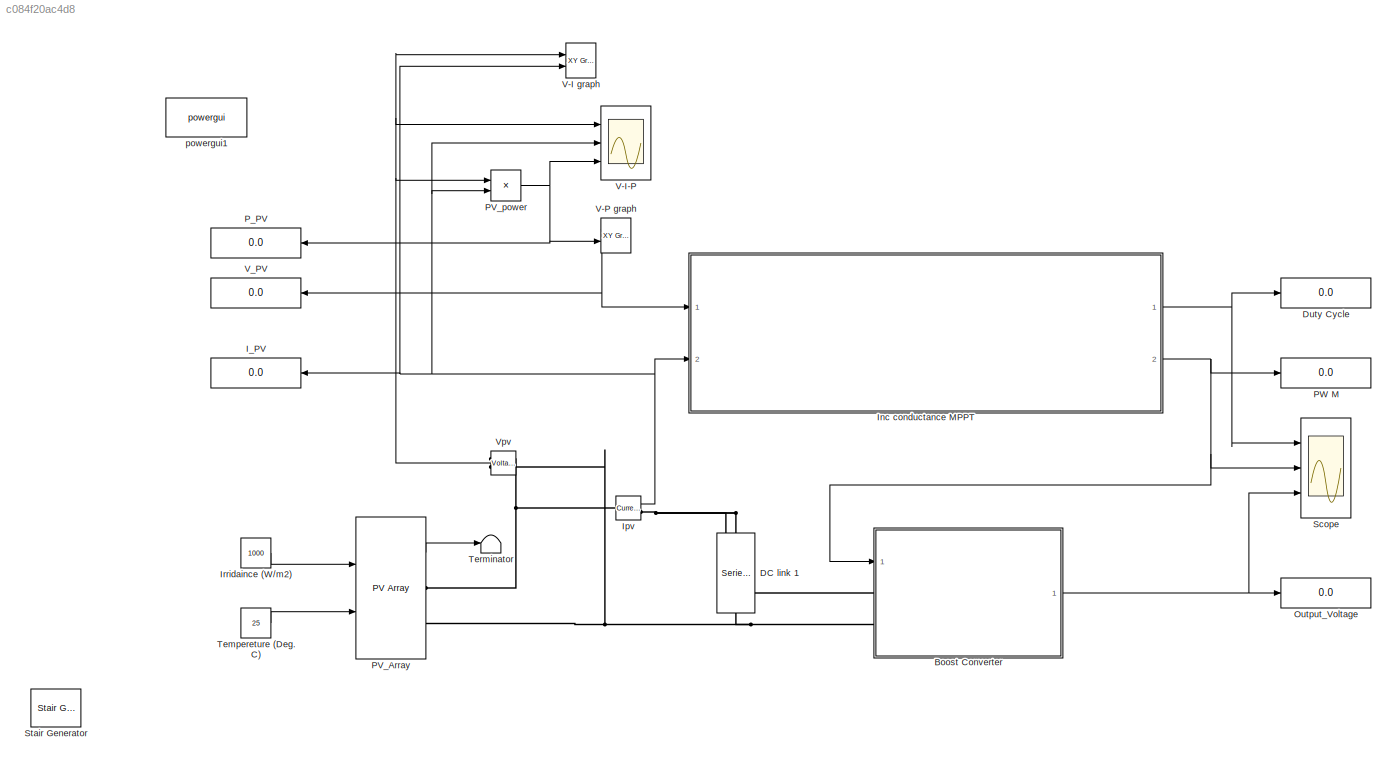
MODEL slx_c084f20ac4d8
KIND model
CONFIG AbsTol = auto
CONFIG EnableMultiTasking = off
CONFIG FixedStep = auto
CONFIG MaxStep = auto
CONFIG MinStep = auto
CONFIG RelTol = 1e-3
CONFIG SampleTimeConstraint = Unconstrained
CONFIG Solver = VariableStepDiscrete
CONFIG SolverName = VariableStepDiscrete
CONFIG StartTime = 0.0
CONFIG StopTime = 1
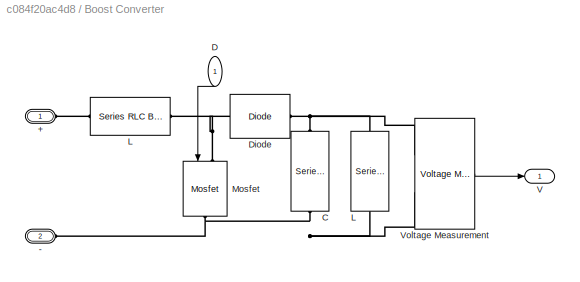
BLOCK [SubSystem] Boost Converter
  Ports = [1, 1, 0, 0, 0, 2]
  RequestExecContextInheritance = off
BLOCK [PMIOPort] Boost Converter/+
  Side = Left
BLOCK [PMIOPort] Boost Converter/-
  Port = 2
  Side = Left
BLOCK [Reference] Boost Converter/C   REF=powerlib/Elements/Series RLC Branch
  Ports = [0, 0, 0, 0, 0, 1, 1]
  SourceBlock = powerlib/Elements/Series RLC Branch
  SourceProductBaseCode = PS
  SourceProductName = Simscape Power Systems
  SourceType = Series RLC Branch
BLOCK [Inport] Boost Converter/D
  IconDisplay = Port number
BLOCK [Reference] Boost Converter/Diode  REF=powerlib/Power
Electronics/Diode
  Ports = [0, 0, 0, 0, 0, 1, 1]
  SourceBlock = powerlib/Power\nElectronics/Diode
  SourceProductBaseCode = PS
  SourceProductName = Simscape Power Systems
  SourceType = Diode
BLOCK [Reference] Boost Converter/L  REF=powerlib/Elements/Series RLC Branch
  Ports = [0, 0, 0, 0, 0, 1, 1]
  SourceBlock = powerlib/Elements/Series RLC Branch
  SourceProductBaseCode = PS
  SourceProductName = Simscape Power Systems
  SourceType = Series RLC Branch
BLOCK [Reference] Boost Converter/L    REF=powerlib/Elements/Series RLC Branch
  Ports = [0, 0, 0, 0, 0, 1, 1]
  SourceBlock = powerlib/Elements/Series RLC Branch
  SourceProductBaseCode = PS
  SourceProductName = Simscape Power Systems
  SourceType = Series RLC Branch
BLOCK [Reference] Boost Converter/Mosfet  REF=powerlib/Power
Electronics/Mosfet
  Ports = [1, 0, 0, 0, 0, 1, 1]
  SourceBlock = powerlib/Power\nElectronics/Mosfet
  SourceProductBaseCode = PS
  SourceProductName = Simscape Power Systems
  SourceType = Mosfet
BLOCK [Outport] Boost Converter/V
  IconDisplay = Port number
BLOCK [Reference] Boost Converter/Voltage Measurement  REF=powerlib/Measurements/Voltage Measurement
  Ports = [0, 1, 0, 0, 0, 2]
  SourceBlock = powerlib/Measurements/Voltage Measurement
  SourceProductBaseCode = PS
  SourceProductName = Simscape Power Systems
  SourceType = Voltage Measurement
  UserDataPersistent = on
BLOCK [Reference] DC link 1  REF=powerlib/Elements/Series RLC Branch
  Ports = [0, 0, 0, 0, 0, 1, 1]
  SourceBlock = powerlib/Elements/Series RLC Branch
  SourceProductBaseCode = PS
  SourceProductName = Simscape Power Systems
  SourceType = Series RLC Branch
BLOCK [Display] Duty Cycle
  Decimation = 1
  Ports = [1]
BLOCK [Display] I_PV
  Decimation = 1
  Ports = [1]
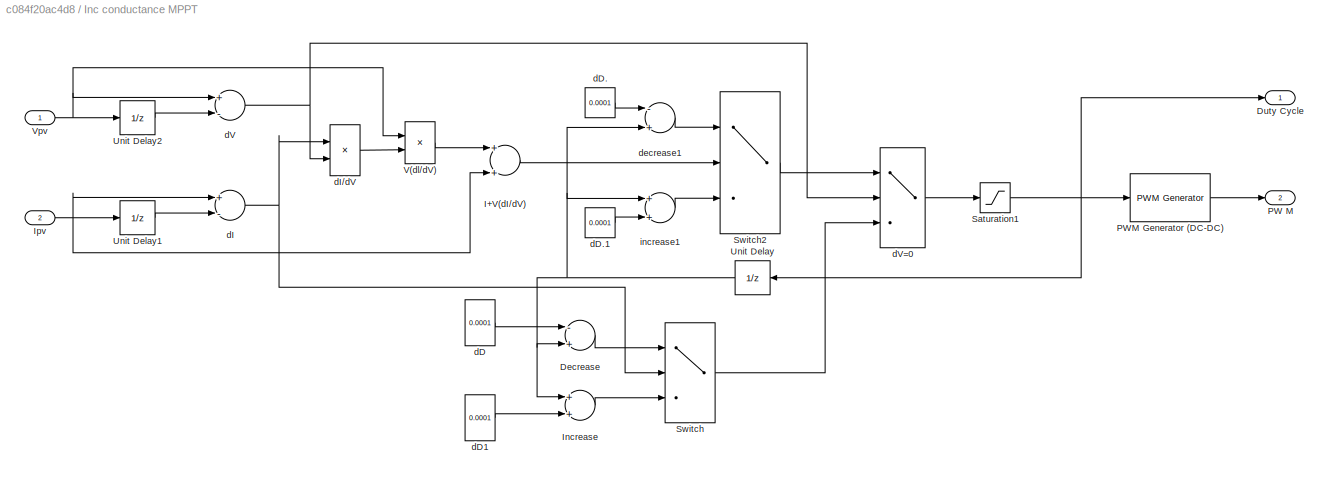
BLOCK [SubSystem] Inc conductance MPPT
  Ports = [2, 2]
  RequestExecContextInheritance = off
BLOCK [Sum] Inc conductance MPPT/Decrease
  InputSameDT = off
  Inputs = -+
  OutDataTypeStr = Inherit: Inherit via internal rule
  Ports = [2, 1]
  SaturateOnIntegerOverflow = off
BLOCK [Outport] Inc conductance MPPT/Duty Cycle
  IconDisplay = Port number
BLOCK [Sum] Inc conductance MPPT/I+V(dI//dV)
  InputSameDT = off
  OutDataTypeStr = Inherit: Inherit via internal rule
  Ports = [2, 1]
  SaturateOnIntegerOverflow = off
BLOCK [Sum] Inc conductance MPPT/Increase
  InputSameDT = off
  OutDataTypeStr = Inherit: Inherit via internal rule
  Ports = [2, 1]
  SaturateOnIntegerOverflow = off
BLOCK [Inport] Inc conductance MPPT/Ipv
  IconDisplay = Port number
  Port = 2
BLOCK [Outport] Inc conductance MPPT/PW M
  IconDisplay = Port number
  Port = 2
BLOCK [Reference] Inc conductance MPPT/PWM Generator (DC-DC)  REF=pePwmGenerator/PWM Generator
  Ports = [1, 1]
  SourceBlock = pePwmGenerator/PWM Generator
  SourceType = PWM Generator
BLOCK [Saturate] Inc conductance MPPT/Saturation1
  InputPortMap = u0
  Ports = [1, 1]
BLOCK [Switch] Inc conductance MPPT/Switch
  Criteria = u2 > Threshold
  InputSameDT = off
  SaturateOnIntegerOverflow = off
BLOCK [Switch] Inc conductance MPPT/Switch2
  Criteria = u2 > Threshold
  InputSameDT = off
  SaturateOnIntegerOverflow = off
BLOCK [UnitDelay] Inc conductance MPPT/Unit Delay
  InputProcessing = Elements as channels (sample based)
  SampleTime = 5e-6
BLOCK [UnitDelay] Inc conductance MPPT/Unit Delay1
  InputProcessing = Elements as channels (sample based)
  SampleTime = 5e-5
BLOCK [UnitDelay] Inc conductance MPPT/Unit Delay2
  InputProcessing = Elements as channels (sample based)
  SampleTime = 5e-5
BLOCK [Product] Inc conductance MPPT/V(dl//dV)
  InputSameDT = off
  OutDataTypeStr = Inherit: Inherit via internal rule
  Ports = [2, 1]
  RndMeth = Floor
  SaturateOnIntegerOverflow = off
BLOCK [Inport] Inc conductance MPPT/Vpv
  IconDisplay = Port number
BLOCK [Constant] Inc conductance MPPT/dD
  Value = 0.0001
BLOCK [Constant] Inc conductance MPPT/dD.
  Value = 0.0001
BLOCK [Constant] Inc conductance MPPT/dD.1
  Value = 0.0001
BLOCK [Constant] Inc conductance MPPT/dD1
  Value = 0.0001
BLOCK [Sum] Inc conductance MPPT/dI
  InputSameDT = off
  Inputs = +-
  OutDataTypeStr = Inherit: Inherit via internal rule
  Ports = [2, 1]
  SaturateOnIntegerOverflow = off
BLOCK [Product] Inc conductance MPPT/dI//dV
  InputSameDT = off
  Inputs = */
  OutDataTypeStr = Inherit: Inherit via internal rule
  Ports = [2, 1]
  RndMeth = Floor
  SaturateOnIntegerOverflow = off
BLOCK [Sum] Inc conductance MPPT/dV
  InputSameDT = off
  Inputs = +-
  OutDataTypeStr = Inherit: Inherit via internal rule
  Ports = [2, 1]
  SaturateOnIntegerOverflow = off
BLOCK [Switch] Inc conductance MPPT/dV=0
  Criteria = u2 ~= 0
  InputSameDT = off
  SaturateOnIntegerOverflow = off
  Threshold = 1
BLOCK [Sum] Inc conductance MPPT/decrease1
  InputSameDT = off
  Inputs = -+
  OutDataTypeStr = Inherit: Inherit via internal rule
  Ports = [2, 1]
  SaturateOnIntegerOverflow = off
BLOCK [Sum] Inc conductance MPPT/increase1
  InputSameDT = off
  OutDataTypeStr = Inherit: Inherit via internal rule
  Ports = [2, 1]
  SaturateOnIntegerOverflow = off
BLOCK [Reference] Ipv  REF=powerlib/Measurements/Current Measurement
  Ports = [0, 1, 0, 0, 0, 1, 1]
  SourceBlock = powerlib/Measurements/Current Measurement
  SourceProductBaseCode = PS
  SourceProductName = Simscape Power Systems
  SourceType = Current Measurement
  UserDataPersistent = on
BLOCK [Constant] Irridaince (W//m2)
  Value = 1000
  VectorParams1D = off
BLOCK [Display] Output_Voltage
  Decimation = 1
  Ports = [1]
BLOCK [Reference] PV_Array  REF=re_lib/Solar/PV Array
  Ports = [2, 1, 0, 0, 0, 0, 2]
  SourceBlock = re_lib/Solar/PV Array
  SourceProductBaseCode = PS
  SourceProductName = Simscape Power Systems
  SourceType = PV array
BLOCK [Product] PV_power
  InputSameDT = off
  OutDataTypeStr = Inherit: Inherit via internal rule
  Ports = [2, 1]
  RndMeth = Floor
  SaturateOnIntegerOverflow = off
BLOCK [Display] PW M
  Decimation = 1
  Ports = [1]
BLOCK [Display] P_PV
  Decimation = 1
  Ports = [1]
BLOCK [Scope] Scope
  Floating = off
  NumInputPorts = 3
  Ports = [3]
  ScopeSpecificationString = Simulink.scopes.TimeScopeBlockCfg('CurrentConfiguration', extmgr.ConfigurationSet(extmgr.Configuration('Core','General UI',true),extmgr.Configuration('Core','Source UI',true),extmgr.Configuration('Sources','WiredSimulink',true),extmgr.Configuration('Visuals','Time Domain',true,'SerializedDisplays',{struct('MinYLimReal','-0.50644','MaxYLimReal','0.24894','YLabelReal','','MinYLimMag','0.00000','MaxY...<+2743ch>
BLOCK [Reference] Stair Generator  REF=powerlib_meascontrol/Pulse & Signal
Generators/Stair
Generator
  Commented = on
  Ports = [0, 1]
  SourceBlock = powerlib_meascontrol/Pulse & Signal\nGenerators/Stair\nGenerator
  SourceProductBaseCode = PS
  SourceProductName = Simscape Power Systems
  SourceType = Stair Generator
BLOCK [Constant] Tempereture (Deg. C)
  Value = 25
BLOCK [Terminator] Terminator
BLOCK [Reference] V-I graph   REF=simulink/Sinks/XY Graph
  Ports = [2]
  SourceBlock = simulink/Sinks/XY Graph
  SourceProductBaseCode = SL
  SourceProductName = Simulink
  SourceType = XY scope.
BLOCK [Scope] V-I-P
  Floating = off
  NumInputPorts = 3
  Ports = [3]
  ScopeSpecificationString = Simulink.scopes.TimeScopeBlockCfg('CurrentConfiguration', extmgr.ConfigurationSet(extmgr.Configuration('Core','General UI',true),extmgr.Configuration('Core','Source UI',true),extmgr.Configuration('Sources','WiredSimulink',true,'DataLoggingVariableName','ScopeData1'),extmgr.Configuration('Visuals','Time Domain',true,'SerializedDisplays',{struct('MinYLimReal','-4.71743','MaxYLimReal','42.50286','YLa...<+2740ch>
BLOCK [Reference] V-P graph  REF=simulink/Sinks/XY Graph
  Ports = [2]
  SourceBlock = simulink/Sinks/XY Graph
  SourceProductBaseCode = SL
  SourceProductName = Simulink
  SourceType = XY scope.
BLOCK [Display] V_PV
  Decimation = 1
  Ports = [1]
BLOCK [Reference] Vpv  REF=powerlib/Measurements/Voltage Measurement
  Ports = [0, 1, 0, 0, 0, 2]
  SourceBlock = powerlib/Measurements/Voltage Measurement
  SourceProductBaseCode = PS
  SourceProductName = Simscape Power Systems
  SourceType = Voltage Measurement
  UserDataPersistent = on
BLOCK [Reference] powergui1  REF=powerlib/powergui
  Ports = []
  Priority = 1
  SourceBlock = powerlib/powergui
  SourceProductBaseCode = PS
  SourceProductName = Simscape Power Systems
  SourceType = PSB option menu block
LINE Boost Converter/D:1 -> Boost Converter/Mosfet:1
LINE Boost Converter/Voltage Measurement:1 -> Boost Converter/V:1
NET Boost Converter:1 -> Output_Voltage:1, Scope:3
LINE Inc conductance MPPT/Decrease:1 -> Inc conductance MPPT/Switch:1
LINE Inc conductance MPPT/I+V(dI//dV):1 -> Inc conductance MPPT/Switch2:2
LINE Inc conductance MPPT/Increase:1 -> Inc conductance MPPT/Switch:3
NET Inc conductance MPPT/Ipv:1 -> Inc conductance MPPT/I+V(dI//dV):2, Inc conductance MPPT/Unit Delay1:1, Inc conductance MPPT/dI:1
LINE Inc conductance MPPT/PWM Generator (DC-DC):1 -> Inc conductance MPPT/PW M:1
NET Inc conductance MPPT/Saturation1:1 -> Inc conductance MPPT/Duty Cycle:1, Inc conductance MPPT/PWM Generator (DC-DC):1, Inc conductance MPPT/Unit Delay:1
LINE Inc conductance MPPT/Switch2:1 -> Inc conductance MPPT/dV=0:1
LINE Inc conductance MPPT/Switch:1 -> Inc conductance MPPT/dV=0:3
LINE Inc conductance MPPT/Unit Delay1:1 -> Inc conductance MPPT/dI:2
LINE Inc conductance MPPT/Unit Delay2:1 -> Inc conductance MPPT/dV:2
NET Inc conductance MPPT/Unit Delay:1 -> Inc conductance MPPT/Decrease:2, Inc conductance MPPT/Increase:1, Inc conductance MPPT/decrease1:2, Inc conductance MPPT/increase1:1
LINE Inc conductance MPPT/V(dl//dV):1 -> Inc conductance MPPT/I+V(dI//dV):1
NET Inc conductance MPPT/Vpv:1 -> Inc conductance MPPT/Unit Delay2:1, Inc conductance MPPT/V(dl//dV):1, Inc conductance MPPT/dV:1
LINE Inc conductance MPPT/dD.1:1 -> Inc conductance MPPT/increase1:2
LINE Inc conductance MPPT/dD.:1 -> Inc conductance MPPT/decrease1:1
LINE Inc conductance MPPT/dD1:1 -> Inc conductance MPPT/Increase:2
LINE Inc conductance MPPT/dD:1 -> Inc conductance MPPT/Decrease:1
LINE Inc conductance MPPT/dI//dV:1 -> Inc conductance MPPT/V(dl//dV):2
NET Inc conductance MPPT/dI:1 -> Inc conductance MPPT/Switch:2, Inc conductance MPPT/dI//dV:1
NET Inc conductance MPPT/dV:1 -> Inc conductance MPPT/dI//dV:2, Inc conductance MPPT/dV=0:2
LINE Inc conductance MPPT/dV=0:1 -> Inc conductance MPPT/Saturation1:1
LINE Inc conductance MPPT/decrease1:1 -> Inc conductance MPPT/Switch2:1
LINE Inc conductance MPPT/increase1:1 -> Inc conductance MPPT/Switch2:3
NET Inc conductance MPPT:1 -> Duty Cycle:1, Scope:1
NET Inc conductance MPPT:2 -> Boost Converter:1, PW M:1, Scope:2
NET Ipv:1 -> I_PV:1, Inc conductance MPPT:2, PV_power:2, V-I graph :2, V-I-P:2
LINE Irridaince (W//m2):1 -> PV_Array:1
LINE PV_Array:1 -> Terminator:1
NET PV_power:1 -> P_PV:1, V-I-P:3, V-P graph:2
LINE Tempereture (Deg. C):1 -> PV_Array:2
NET Vpv:1 -> Inc conductance MPPT:1, PV_power:1, V-I graph :1, V-I-P:1, V-P graph:1, V_PV:1
PLINE Boost Converter/+:RConn1 -- Boost Converter/L:LConn1
PNET net1: Boost Converter/-:RConn1 -- Boost Converter/C :RConn1 -- Boost Converter/L  :RConn1 -- Boost Converter/Mosfet:RConn1 -- Boost Converter/Voltage Measurement:LConn2
PNET net2: Boost Converter/C :LConn1 -- Boost Converter/Diode:RConn1 -- Boost Converter/L  :LConn1 -- Boost Converter/Voltage Measurement:LConn1
PNET net3: Boost Converter/Diode:LConn1 -- Boost Converter/L:RConn1 -- Boost Converter/Mosfet:LConn1
PNET net4: Boost Converter:LConn1 -- DC link 1:LConn1 -- Ipv:RConn1
PNET net5: Boost Converter:LConn2 -- DC link 1:RConn1 -- PV_Array:RConn2 -- Vpv:LConn2
PNET net6: Ipv:LConn1 -- PV_Array:RConn1 -- Vpv:LConn1
note: NET lines group one-source signal fan-out (src -> all destinations, sorted); 1:1 wires keep LINE; PNET lines group multi-terminal physical nets as a canonical sorted terminal list (undirected conserving connections); 2-terminal nets keep the pairwise PLINE form
